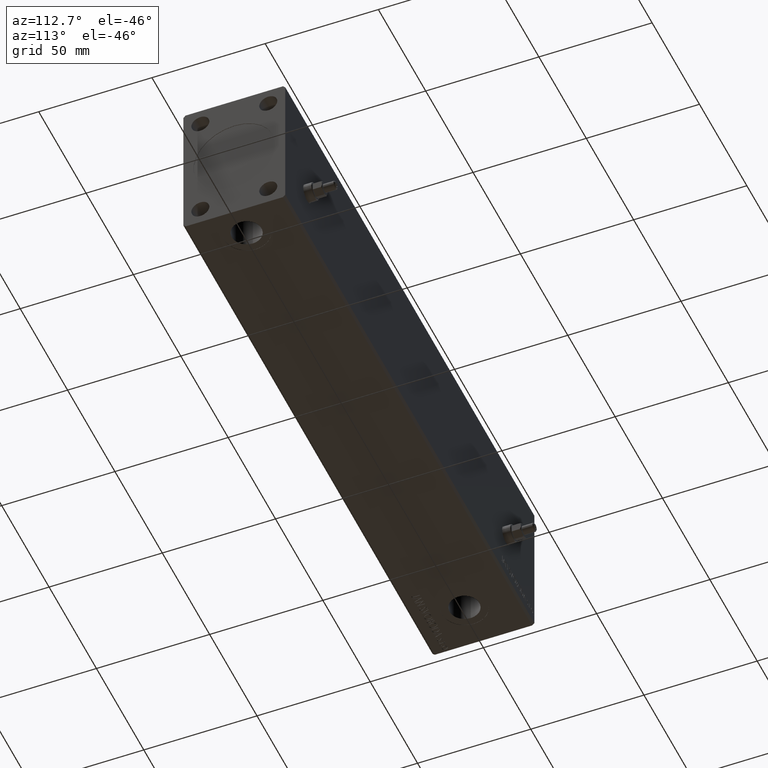
[diagram: clean part render]
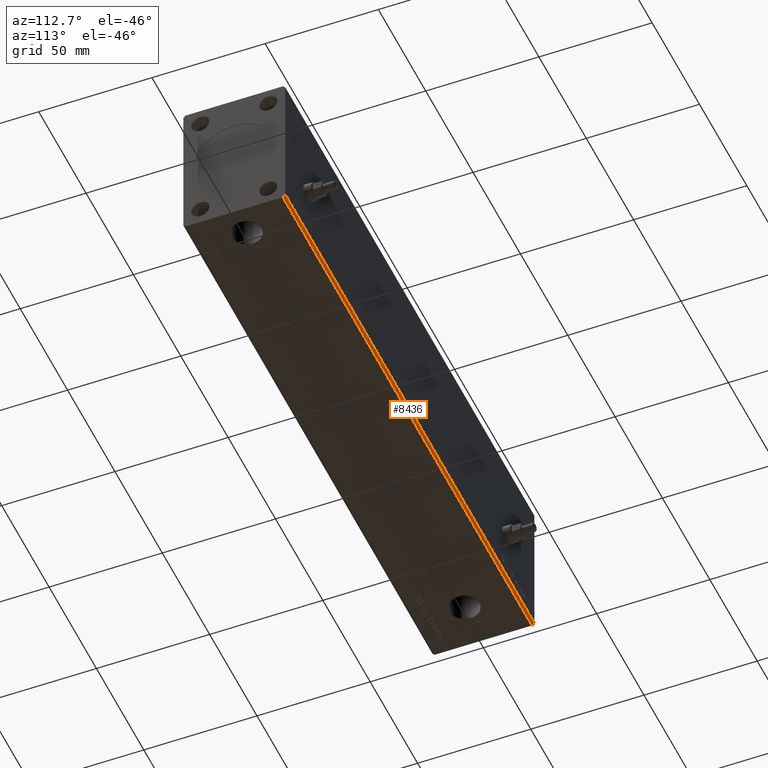
[diagram: same view with one face highlighted and labeled with its STEP entity id]
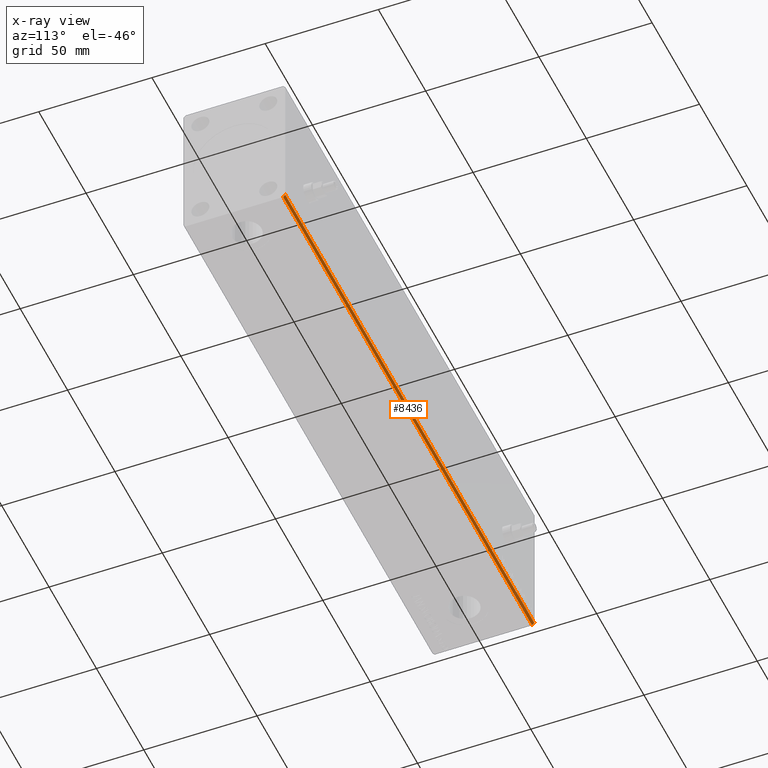
[diagram: x-ray of the same camera — body ghosted, the highlighted face saturated]
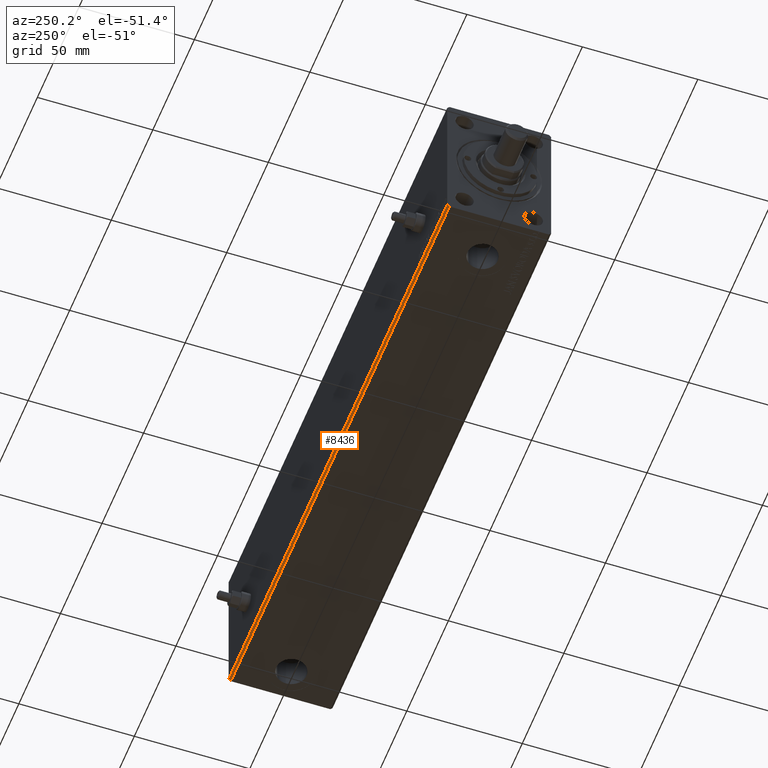
[diagram: same view with one face highlighted and labeled with its STEP entity id]
A machine part, auxiliary view. The second image highlights one B-rep face of the part: STEP entity #8436.
The next image is the same camera in x-ray: the body ghosted, the highlighted face saturated — about 0% of this face is hidden behind the body in this view.
A second angle (auxiliary view) of the same face is appended — the face is thin or edge-on in the first view.
In plain terms, the highlighted planar face has unit normal (0, -0.7071, 0.7071).
Its self-contained STEP definition (entity closure, byte-faithful):
#322 = LINE ( 'NONE', #10883, #39934 ) ;
#1259 = FACE_OUTER_BOUND ( 'NONE', #31057, .T. ) ;
#3088 = VECTOR ( 'NONE', #40867, 1000.000000000000000 ) ;
#3494 = CARTESIAN_POINT ( 'NONE',  ( 263.0000000000000000, 21.49999999999999645, -32.50000000000000000 ) ) ;
#4659 = VECTOR ( 'NONE', #35198, 1000.000000000000000 ) ;
#7162 = ORIENTED_EDGE ( 'NONE', *, *, #29439, .F. ) ;
#8436 = ADVANCED_FACE ( 'NONE', ( #1259 ), #11823, .F. ) ;
#8612 = ORIENTED_EDGE ( 'NONE', *, *, #37931, .T. ) ;
#10883 = CARTESIAN_POINT ( 'NONE',  ( 0.000000000000000000, 21.49999999999999645, -32.50000000000000000 ) ) ;
#11823 = PLANE ( 'NONE',  #39839 ) ;
#13568 = CARTESIAN_POINT ( 'NONE',  ( 263.0000000000000000, 21.49999999999999645, -32.50000000000000000 ) ) ;
#13864 = VERTEX_POINT ( 'NONE', #19604 ) ;
#14086 = DIRECTION ( 'NONE',  ( 0.000000000000000000, 0.7071067811865474617, 0.7071067811865474617 ) ) ;
#18009 = VERTEX_POINT ( 'NONE', #36606 ) ;
#18832 = VECTOR ( 'NONE', #31707, 1000.000000000000114 ) ;
#18946 = DIRECTION ( 'NONE',  ( 0.000000000000000000, -0.7071067811865475727, 0.7071067811865475727 ) ) ;
#19604 = CARTESIAN_POINT ( 'NONE',  ( 263.0000000000000000, 22.49999999999999645, -31.50000000000000000 ) ) ;
#19629 = CARTESIAN_POINT ( 'NONE',  ( 263.0000000000000000, 21.49999999999999645, -32.50000000000000000 ) ) ;
#20388 = EDGE_CURVE ( 'NONE', #26366, #13864, #34933, .T. ) ;
#20716 = CARTESIAN_POINT ( 'NONE',  ( 0.000000000000000000, 21.49999999999999645, -32.50000000000000000 ) ) ;
#23406 = CARTESIAN_POINT ( 'NONE',  ( 263.0000000000000000, 22.49999999999999645, -31.50000000000000000 ) ) ;
#25254 = ORIENTED_EDGE ( 'NONE', *, *, #29112, .T. ) ;
#26366 = VERTEX_POINT ( 'NONE', #19629 ) ;
#29112 = EDGE_CURVE ( 'NONE', #26366, #39208, #34973, .T. ) ;
#29439 = EDGE_CURVE ( 'NONE', #13864, #18009, #40410, .T. ) ;
#31057 = EDGE_LOOP ( 'NONE', ( #8612, #7162, #40088, #25254 ) ) ;
#31707 = DIRECTION ( 'NONE',  ( 0.000000000000000000, 0.7071067811865474617, 0.7071067811865474617 ) ) ;
#32736 = CARTESIAN_POINT ( 'NONE',  ( 263.0000000000000000, 21.49999999999999645, -32.50000000000000000 ) ) ;
#34933 = LINE ( 'NONE', #13568, #18832 ) ;
#34973 = LINE ( 'NONE', #3494, #4659 ) ;
#35198 = DIRECTION ( 'NONE',  ( -1.000000000000000000, -0.000000000000000000, -0.000000000000000000 ) ) ;
#36176 = DIRECTION ( 'NONE',  ( 0.000000000000000000, -0.7071067811865474617, -0.7071067811865474617 ) ) ;
#36606 = CARTESIAN_POINT ( 'NONE',  ( 0.000000000000000000, 22.49999999999999645, -31.50000000000000000 ) ) ;
#37931 = EDGE_CURVE ( 'NONE', #39208, #18009, #322, .T. ) ;
#39208 = VERTEX_POINT ( 'NONE', #20716 ) ;
#39839 = AXIS2_PLACEMENT_3D ( 'NONE', #32736, #18946, #36176 ) ;
#39934 = VECTOR ( 'NONE', #14086, 1000.000000000000114 ) ;
#40088 = ORIENTED_EDGE ( 'NONE', *, *, #20388, .F. ) ;
#40410 = LINE ( 'NONE', #23406, #3088 ) ;
#40867 = DIRECTION ( 'NONE',  ( -1.000000000000000000, -0.000000000000000000, -0.000000000000000000 ) ) ;